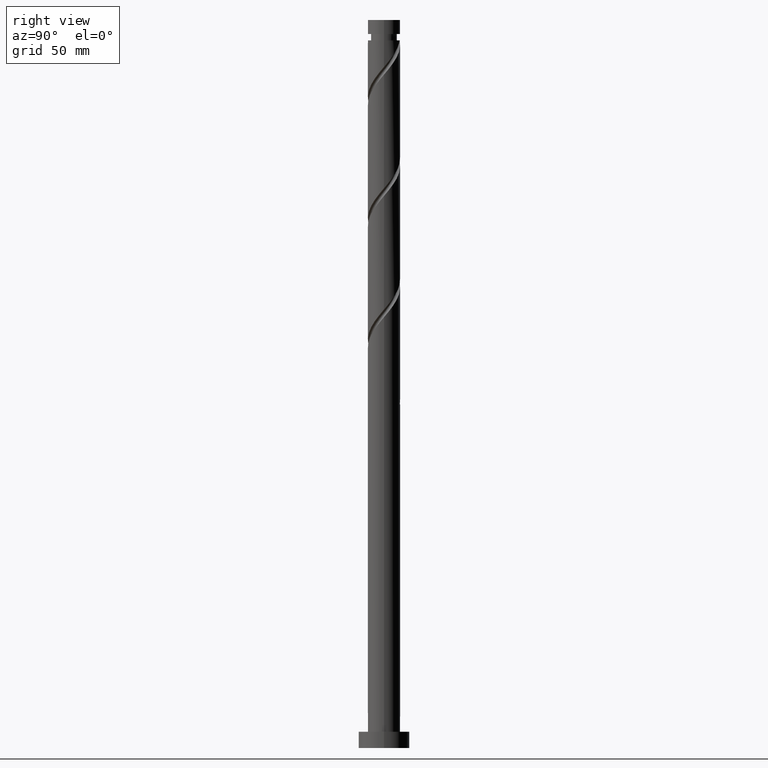
[diagram: clean part render]
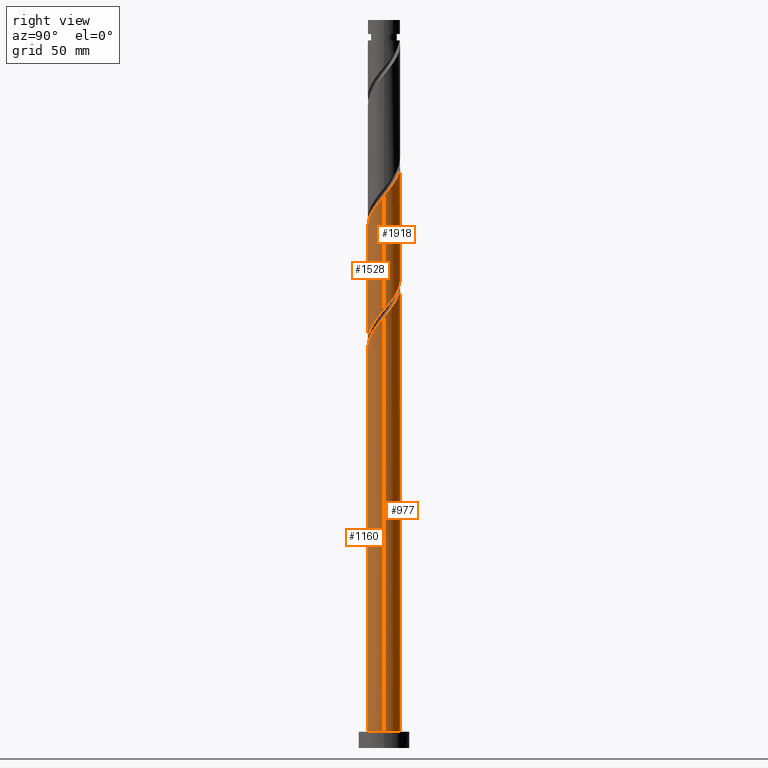
[diagram: same view with one multi-face feature highlighted, each face labeled with its STEP entity id]
A machine part, right view. The highlighted faces form ONE feature: a constant-radius fillet chain: 4 tangent blend faces with common blend radius 7 mm. The faces share edges in the B-rep.
Their STEP definitions:
[1] entity #1160 (Cylinder):
#20 = CARTESIAN_POINT ( 'NONE',  ( 0.000000000000000000, 0.000000000000000000, 315.0000000000000000 ) ) ;
#37 = DIRECTION ( 'NONE',  ( -0.000000000000000000, -0.000000000000000000, -1.000000000000000000 ) ) ;
#46 = ORIENTED_EDGE ( 'NONE', *, *, #988, .T. ) ;
#71 = CARTESIAN_POINT ( 'NONE',  ( 4.231476237048371836, -5.576254016389061263, 178.6868950615576352 ) ) ;
#90 = CARTESIAN_POINT ( 'NONE',  ( 2.165918779664035121, -6.703048576416539284, 175.8743950615576068 ) ) ;
#209 = CARTESIAN_POINT ( 'NONE',  ( 7.000000000000011546, -0.08423028016475025970, 186.2870152954265563 ) ) ;
#227 = CARTESIAN_POINT ( 'NONE',  ( 7.000000000000000888, 8.572527594031474176E-16, 7.000000000000000000 ) ) ;
#229 = CARTESIAN_POINT ( 'NONE',  ( 5.872665919169493876, -3.890226134780121914, 181.4993950615576068 ) ) ;
#239 = CARTESIAN_POINT ( 'NONE',  ( -6.053026884134760088, -3.603183303392013315, 164.6243950615576352 ) ) ;
#246 = CARTESIAN_POINT ( 'NONE',  ( 6.231874297749647518, -3.188062536564728600, 182.4368950615576921 ) ) ;
#351 = VECTOR ( 'NONE', #1786, 1000.000000000000000 ) ;
#359 = EDGE_LOOP ( 'NONE', ( #1624, #1249, #46, #1153 ) ) ;
#363 = CARTESIAN_POINT ( 'NONE',  ( -6.860000000000010978, -1.392982411949271970, 161.8118950615576352 ) ) ;
#384 = CIRCLE ( 'NONE', #437, 7.000000000000000888 ) ;
#437 = AXIS2_PLACEMENT_3D ( 'NONE', #1165, #1627, #561 ) ;
#511 = CARTESIAN_POINT ( 'NONE',  ( 6.997973224858992758, -0.1684361723526152932, 186.1868950615576637 ) ) ;
#518 = CARTESIAN_POINT ( 'NONE',  ( 5.366217544937109452, -4.494853641711742398, 180.5618950615576352 ) ) ;
#561 = DIRECTION ( 'NONE',  ( 1.000000000000000000, 0.000000000000000000, 0.000000000000000000 ) ) ;
#603 = VECTOR ( 'NONE', #1805, 1000.000000000000000 ) ;
#634 = EDGE_CURVE ( 'NONE', #889, #1002, #694, .T. ) ;
#646 = CARTESIAN_POINT ( 'NONE',  ( -7.000000000000011546, -1.044804146506835933E-15, 160.1373779836515325 ) ) ;
#666 = CARTESIAN_POINT ( 'NONE',  ( 1.392982411949271970, -6.860000000000010978, 174.9368950615576068 ) ) ;
#675 = CARTESIAN_POINT ( 'NONE',  ( -0.9569183889397385734, -6.978995026134504620, 172.1243950615575784 ) ) ;
#680 = EDGE_CURVE ( 'NONE', #1404, #1721, #384, .T. ) ;
#683 = CARTESIAN_POINT ( 'NONE',  ( 6.591082676329800272, -2.485898938349336174, 183.3743950615576921 ) ) ;
#694 =( BOUNDED_CURVE ( )  B_SPLINE_CURVE ( 2, ( #646, #1285, #363, #960, #1254, #239, #1877, #1148, #816, #839, #1867, #1726, #1441, #675, #1554, #1110, #666, #90, #1422, #1839, #71, #1859, #518, #229, #246, #683, #848, #1448, #511, #209, #1411 ),
 .UNSPECIFIED., .F., .T. ) 
 B_SPLINE_CURVE_WITH_KNOTS ( ( 3, 2, 2, 2, 2, 2, 2, 2, 2, 2, 2, 2, 2, 2, 2, 3 ),
 ( 0.05453034012992191704, 0.06250000000000000000, 0.07142857142857139685, 0.08035714285714290472, 0.08928571428571430157, 0.09821428571428569843, 0.1071428571428570953, 0.1160714285714286031, 0.1250000000000000000, 0.1339285714285713969, 0.1428571428571429047, 0.1517857142857143016, 0.1607142857142856984, 0.1696428571428570953, 0.1785714285714286031, 0.1795303401299218893 ),
 .UNSPECIFIED. ) 
 CURVE ( )  GEOMETRIC_REPRESENTATION_ITEM ( )  RATIONAL_B_SPLINE_CURVE ( ( 0.9079949616361994158, 0.9039886423360623535, 0.9090909090909291557, 0.9033747362666042502, 0.9090909090909291557, 0.9033747362666042502, 0.9090909090909291557, 0.9033747362666042502, 0.9090909090909291557, 0.9033747362666042502, 0.9090909090909291557, 0.9033747362666042502, 0.9090909090909291557, 0.9033747362666042502, 0.9090909090909291557, 0.9033747362666042502, 0.9090909090909291557, 0.9033747362666042502, 0.9090909090909291557, 0.9033747362666042502, 0.9090909090909291557, 0.9033747362666042502, 0.9090909090909291557, 0.9033747362666042502, 0.9090909090909291557, 0.9033747362666042502, 0.9090909090909291557, 0.9033747362666042502, 0.9090909090909291557, 0.9084770030214710523, 0.9079949616361995268 ) ) 
 REPRESENTATION_ITEM ( '' )  );
#740 = CARTESIAN_POINT ( 'NONE',  ( 7.000000000000011546, 1.940350557798409428E-16, 186.3873779836515894 ) ) ;
#816 = CARTESIAN_POINT ( 'NONE',  ( -4.494853641711742398, -5.366217544937112116, 167.4368950615576352 ) ) ;
#839 = CARTESIAN_POINT ( 'NONE',  ( -3.890226134780120582, -5.872665919169493876, 168.3743950615576068 ) ) ;
#848 = CARTESIAN_POINT ( 'NONE',  ( 6.785038851232150670, -1.721408663644537151, 184.3118950615576352 ) ) ;
#865 = CARTESIAN_POINT ( 'NONE',  ( -7.000000000000011546, -1.044804146506835933E-15, 160.1373779836515325 ) ) ;
#889 = VERTEX_POINT ( 'NONE', #865 ) ;
#923 = FACE_OUTER_BOUND ( 'NONE', #359, .T. ) ;
#960 = CARTESIAN_POINT ( 'NONE',  ( -6.703048576416539284, -2.165918779664035121, 162.7493950615576068 ) ) ;
#988 = EDGE_CURVE ( 'NONE', #889, #1404, #1201, .T. ) ;
#1002 = VERTEX_POINT ( 'NONE', #740 ) ;
#1097 = LINE ( 'NONE', #1684, #603 ) ;
#1110 = CARTESIAN_POINT ( 'NONE',  ( 0.6200460442345087086, -7.016951423583483560, 173.9993950615576637 ) ) ;
#1148 = CARTESIAN_POINT ( 'NONE',  ( -5.099481148643362438, -4.859769170704725916, 166.4993950615577205 ) ) ;
#1153 = ORIENTED_EDGE ( 'NONE', *, *, #680, .T. ) ;
#1160 = ADVANCED_FACE ( 'NONE', ( #923 ), #1368, .T. ) ;
#1165 = CARTESIAN_POINT ( 'NONE',  ( 0.000000000000000000, 0.000000000000000000, 7.000000000000000000 ) ) ;
#1191 = EDGE_CURVE ( 'NONE', #1002, #1721, #1097, .T. ) ;
#1201 = LINE ( 'NONE', #1358, #351 ) ;
#1249 = ORIENTED_EDGE ( 'NONE', *, *, #634, .F. ) ;
#1254 = CARTESIAN_POINT ( 'NONE',  ( -6.378037730275649686, -2.884551041528024218, 163.6868950615575500 ) ) ;
#1285 = CARTESIAN_POINT ( 'NONE',  ( -7.000000000000016875, -0.7035264706814366997, 160.9756490626151901 ) ) ;
#1358 = CARTESIAN_POINT ( 'NONE',  ( -7.000000000000000888, 0.000000000000000000, 315.0000000000000000 ) ) ;
#1368 = CYLINDRICAL_SURFACE ( 'NONE', #1754, 7.000000000000000888 ) ;
#1396 = DIRECTION ( 'NONE',  ( -1.000000000000000000, 0.000000000000000000, 0.000000000000000000 ) ) ;
#1404 = VERTEX_POINT ( 'NONE', #1670 ) ;
#1411 = CARTESIAN_POINT ( 'NONE',  ( 7.000000000000011546, 1.940350557798409428E-16, 186.3873779836515894 ) ) ;
#1422 = CARTESIAN_POINT ( 'NONE',  ( 2.884551041528023774, -6.378037730275649686, 176.8118950615576352 ) ) ;
#1441 = CARTESIAN_POINT ( 'NONE',  ( -1.721408663644536707, -6.785038851232150670, 171.1868950615576352 ) ) ;
#1448 = CARTESIAN_POINT ( 'NONE',  ( 6.978995026134502844, -0.9569183889397390175, 185.2493950615576352 ) ) ;
#1554 = CARTESIAN_POINT ( 'NONE',  ( -0.1684361723526149324, -6.997973224858992758, 173.0618950615576921 ) ) ;
#1624 = ORIENTED_EDGE ( 'NONE', *, *, #1191, .F. ) ;
#1627 = DIRECTION ( 'NONE',  ( 0.000000000000000000, 0.000000000000000000, 1.000000000000000000 ) ) ;
#1670 = CARTESIAN_POINT ( 'NONE',  ( -7.000000000000000888, 0.000000000000000000, 7.000000000000000000 ) ) ;
#1684 = CARTESIAN_POINT ( 'NONE',  ( 7.000000000000000888, 8.572527594031474176E-16, 315.0000000000000000 ) ) ;
#1721 = VERTEX_POINT ( 'NONE', #227 ) ;
#1726 = CARTESIAN_POINT ( 'NONE',  ( -2.485898938349336174, -6.591082676329800272, 170.2493950615576637 ) ) ;
#1754 = AXIS2_PLACEMENT_3D ( 'NONE', #20, #37, #1396 ) ;
#1786 = DIRECTION ( 'NONE',  ( -0.000000000000000000, -0.000000000000000000, -1.000000000000000000 ) ) ;
#1805 = DIRECTION ( 'NONE',  ( -0.000000000000000000, -0.000000000000000000, -1.000000000000000000 ) ) ;
#1839 = CARTESIAN_POINT ( 'NONE',  ( 3.603183303392012871, -6.053026884134760088, 177.7493950615576637 ) ) ;
#1859 = CARTESIAN_POINT ( 'NONE',  ( 4.859769170704725916, -5.099481148643362438, 179.6243950615576637 ) ) ;
#1867 = CARTESIAN_POINT ( 'NONE',  ( -3.188062536564728155, -6.231874297749647518, 169.3118950615576637 ) ) ;
#1877 = CARTESIAN_POINT ( 'NONE',  ( -5.576254016389061263, -4.231476237048371836, 165.5618950615576068 ) ) ;
[2] entity #977 (Cylinder):
#12 = CARTESIAN_POINT ( 'NONE',  ( -7.000000000000002665, 2.895600063176107384E-15, 163.4864121394637095 ) ) ;
#13 = CARTESIAN_POINT ( 'NONE',  ( 6.378037730275649686, 2.884551041528023774, 189.9368950615576637 ) ) ;
#22 = CARTESIAN_POINT ( 'NONE',  ( 1.392982411949273081, 6.860000000000001208, 148.6868950615576068 ) ) ;
#30 = CYLINDRICAL_SURFACE ( 'NONE', #289, 7.000000000000000888 ) ;
#41 = CARTESIAN_POINT ( 'NONE',  ( -6.703048576416528626, 2.165918779664034233, 160.8743950615576352 ) ) ;
#52 = CARTESIAN_POINT ( 'NONE',  ( -7.000000000000002665, 2.895600063176107384E-15, 163.4864121394637095 ) ) ;
#65 = VERTEX_POINT ( 'NONE', #1870 ) ;
#72 = CIRCLE ( 'NONE', #1577, 7.000000000000000888 ) ;
#114 = LINE ( 'NONE', #1794, #1880 ) ;
#142 = DIRECTION ( 'NONE',  ( -1.000000000000000000, 0.000000000000000000, 0.000000000000000000 ) ) ;
#159 = CARTESIAN_POINT ( 'NONE',  ( 5.576254016389061263, 4.231476237048370059, 191.8118950615576352 ) ) ;
#167 = CARTESIAN_POINT ( 'NONE',  ( -5.366217544937112116, 4.494853641711742398, 154.3118950615576352 ) ) ;
#180 = CARTESIAN_POINT ( 'NONE',  ( -0.6200460442345080425, 7.016951423583484448, 200.2493950615576068 ) ) ;
#217 = EDGE_CURVE ( 'NONE', #65, #1033, #72, .T. ) ;
#227 = CARTESIAN_POINT ( 'NONE',  ( 7.000000000000000888, 8.572527594031474176E-16, 7.000000000000000000 ) ) ;
#264 = CARTESIAN_POINT ( 'NONE',  ( 0.000000000000000000, 0.000000000000000000, 7.000000000000000000 ) ) ;
#269 = ORIENTED_EDGE ( 'NONE', *, *, #566, .F. ) ;
#289 = AXIS2_PLACEMENT_3D ( 'NONE', #476, #1349, #1807 ) ;
#298 =( BOUNDED_CURVE ( )  B_SPLINE_CURVE ( 2, ( #12, #1212, #1809, #41, #1677, #926, #1243, #1506, #1788, #306, #1525, #453, #491, #1372, #334, #936, #22 ),
 .UNSPECIFIED., .F., .T. ) 
 B_SPLINE_CURVE_WITH_KNOTS ( ( 3, 2, 2, 2, 2, 2, 2, 2, 3 ),
 ( 0.9295303401299220836, 0.9375000000000000000, 0.9464285714285713969, 0.9553571428571429047, 0.9642857142857143016, 0.9732142857142856984, 0.9821428571428570953, 0.9910714285714286031, 1.000000000000000000 ),
 .UNSPECIFIED. ) 
 CURVE ( )  GEOMETRIC_REPRESENTATION_ITEM ( )  RATIONAL_B_SPLINE_CURVE ( ( 0.9079949616361933096, 0.9039886423360564693, 0.9090909090909231605, 0.9033747362665982550, 0.9090909090909231605, 0.9033747362665982550, 0.9090909090909231605, 0.9033747362665982550, 0.9090909090909231605, 0.9033747362665982550, 0.9090909090909231605, 0.9033747362665982550, 0.9090909090909231605, 0.9033747362665982550, 0.9090909090909231605, 0.9033747362665982550, 0.9090909090909231605 ) ) 
 REPRESENTATION_ITEM ( '' )  );
#304 = CARTESIAN_POINT ( 'NONE',  ( -2.884551041528024218, 6.378037730275649686, 150.5618950615576352 ) ) ;
#306 = CARTESIAN_POINT ( 'NONE',  ( -3.890226134780114808, 5.872665919169487658, 155.2493950615576637 ) ) ;
#307 = CARTESIAN_POINT ( 'NONE',  ( 6.860000000000010978, 1.392982411949271304, 188.0618950615576352 ) ) ;
#327 = CARTESIAN_POINT ( 'NONE',  ( -6.785038851232150670, 1.721408663644536485, 158.0618950615575784 ) ) ;
#334 = CARTESIAN_POINT ( 'NONE',  ( -0.1684361723526128229, 6.997973224858983876, 150.5618950615576637 ) ) ;
#335 = CARTESIAN_POINT ( 'NONE',  ( -6.997973224858992758, 0.1684361723526144605, 159.9368950615576068 ) ) ;
#351 = VECTOR ( 'NONE', #1786, 1000.000000000000000 ) ;
#356 = CARTESIAN_POINT ( 'NONE',  ( -4.231476237048371836, 5.576254016389061263, 204.9368950615576352 ) ) ;
#375 = CARTESIAN_POINT ( 'NONE',  ( -3.603183303392013759, 6.053026884134760088, 203.9993950615576068 ) ) ;
#412 = VERTEX_POINT ( 'NONE', #1517 ) ;
#453 = CARTESIAN_POINT ( 'NONE',  ( -2.485898938349330844, 6.591082676329789614, 153.3743950615576352 ) ) ;
#465 = CARTESIAN_POINT ( 'NONE',  ( -7.000000000000012434, 0.08423028016474699842, 160.0370152954264711 ) ) ;
#470 = VERTEX_POINT ( 'NONE', #52 ) ;
#476 = CARTESIAN_POINT ( 'NONE',  ( 0.000000000000000000, 0.000000000000000000, 315.0000000000000000 ) ) ;
#491 = CARTESIAN_POINT ( 'NONE',  ( -1.721408663644533377, 6.785038851232141788, 152.4368950615576068 ) ) ;
#528 = CARTESIAN_POINT ( 'NONE',  ( -7.000000000000012434, 0.08423028016474699842, 212.5370152954264427 ) ) ;
#540 = CARTESIAN_POINT ( 'NONE',  ( -6.785038851232150670, 1.721408663644536485, 210.5618950615576068 ) ) ;
#566 = EDGE_CURVE ( 'NONE', #1002, #412, #917, .T. ) ;
#585 = CARTESIAN_POINT ( 'NONE',  ( 0.000000000000000000, 0.000000000000000000, 148.6868950615576068 ) ) ;
#603 = VECTOR ( 'NONE', #1805, 1000.000000000000000 ) ;
#606 = CARTESIAN_POINT ( 'NONE',  ( -3.603183303392013759, 6.053026884134760088, 151.4993950615576352 ) ) ;
#619 = CARTESIAN_POINT ( 'NONE',  ( 6.053026884134760088, 3.603183303392011982, 190.8743950615576637 ) ) ;
#641 = ORIENTED_EDGE ( 'NONE', *, *, #988, .F. ) ;
#740 = CARTESIAN_POINT ( 'NONE',  ( 7.000000000000011546, 1.940350557798409428E-16, 186.3873779836515894 ) ) ;
#760 = CARTESIAN_POINT ( 'NONE',  ( -5.872665919169493876, 3.890226134780120582, 155.2493950615576068 ) ) ;
#779 =( BOUNDED_CURVE ( )  B_SPLINE_CURVE ( 2, ( #1675, #1646, #304, #606, #1210, #1657, #167, #760, #1370, #905, #327, #915, #335, #465, #927 ),
 .UNSPECIFIED., .F., .T. ) 
 B_SPLINE_CURVE_WITH_KNOTS ( ( 3, 2, 2, 2, 2, 2, 2, 3 ),
 ( 0.000000000000000000, 0.008928571428571396851, 0.01785714285714290472, 0.02678571428571430157, 0.03571428571428569843, 0.04464285714285708834, 0.05357142857142860315, 0.05453034012992191704 ),
 .UNSPECIFIED. ) 
 CURVE ( )  GEOMETRIC_REPRESENTATION_ITEM ( )  RATIONAL_B_SPLINE_CURVE ( ( 0.9090909090909291557, 0.9033747362666042502, 0.9090909090909291557, 0.9033747362666042502, 0.9090909090909291557, 0.9033747362666042502, 0.9090909090909291557, 0.9033747362666042502, 0.9090909090909291557, 0.9033747362666042502, 0.9090909090909291557, 0.9033747362666042502, 0.9090909090909291557, 0.9084770030214710523, 0.9079949616361994158 ) ) 
 REPRESENTATION_ITEM ( '' )  );
#790 = AXIS2_PLACEMENT_3D ( 'NONE', #264, #1156, #1757 ) ;
#829 = CARTESIAN_POINT ( 'NONE',  ( -4.859769170704726804, 5.099481148643362438, 205.8743950615576637 ) ) ;
#863 = EDGE_CURVE ( 'NONE', #1721, #1404, #1297, .T. ) ;
#865 = CARTESIAN_POINT ( 'NONE',  ( -7.000000000000011546, -1.044804146506835933E-15, 160.1373779836515325 ) ) ;
#889 = VERTEX_POINT ( 'NONE', #865 ) ;
#905 = CARTESIAN_POINT ( 'NONE',  ( -6.591082676329800272, 2.485898938349335285, 157.1243950615576637 ) ) ;
#915 = CARTESIAN_POINT ( 'NONE',  ( -6.978995026134504620, 0.9569183889397380183, 158.9993950615576352 ) ) ;
#917 =( BOUNDED_CURVE ( )  B_SPLINE_CURVE ( 2, ( #1649, #1660, #307, #1508, #13, #619, #159, #1362, #1213, #1221, #1800, #1070, #1810, #1079, #1527, #180, #1697, #1275, #1716, #375, #356, #829, #1849, #1431, #1734, #987, #540, #1140, #1585, #528, #996 ),
 .UNSPECIFIED., .F., .T. ) 
 B_SPLINE_CURVE_WITH_KNOTS ( ( 3, 2, 2, 2, 2, 2, 2, 2, 2, 2, 2, 2, 2, 2, 2, 3 ),
 ( 0.1795303401299218893, 0.1875000000000000000, 0.1964285714285713969, 0.2053571428571429047, 0.2142857142857143016, 0.2232142857142856984, 0.2321428571428570953, 0.2410714285714286031, 0.2500000000000000000, 0.2589285714285713969, 0.2678571428571429047, 0.2767857142857143016, 0.2857142857142856984, 0.2946428571428570953, 0.3035714285714286031, 0.3045303401299219170 ),
 .UNSPECIFIED. ) 
 CURVE ( )  GEOMETRIC_REPRESENTATION_ITEM ( )  RATIONAL_B_SPLINE_CURVE ( ( 0.9079949616361995268, 0.9039886423360623535, 0.9090909090909291557, 0.9033747362666042502, 0.9090909090909291557, 0.9033747362666042502, 0.9090909090909291557, 0.9033747362666042502, 0.9090909090909291557, 0.9033747362666042502, 0.9090909090909291557, 0.9033747362666042502, 0.9090909090909291557, 0.9033747362666042502, 0.9090909090909291557, 0.9033747362666042502, 0.9090909090909291557, 0.9033747362666042502, 0.9090909090909291557, 0.9033747362666042502, 0.9090909090909291557, 0.9033747362666042502, 0.9090909090909291557, 0.9033747362666042502, 0.9090909090909291557, 0.9033747362666042502, 0.9090909090909291557, 0.9033747362666042502, 0.9090909090909291557, 0.9084770030214710523, 0.9079949616361994158 ) ) 
 REPRESENTATION_ITEM ( '' )  );
#926 = CARTESIAN_POINT ( 'NONE',  ( -6.053026884134752095, 3.603183303392009762, 158.9993950615576352 ) ) ;
#927 = CARTESIAN_POINT ( 'NONE',  ( -7.000000000000011546, -1.044804146506835933E-15, 160.1373779836515325 ) ) ;
#936 = CARTESIAN_POINT ( 'NONE',  ( 0.6200460442345097078, 7.016951423583473790, 149.6243950615576068 ) ) ;
#963 = ORIENTED_EDGE ( 'NONE', *, *, #863, .T. ) ;
#975 = ORIENTED_EDGE ( 'NONE', *, *, #1001, .F. ) ;
#977 = ADVANCED_FACE ( 'NONE', ( #1523 ), #30, .T. ) ;
#987 = CARTESIAN_POINT ( 'NONE',  ( -6.591082676329800272, 2.485898938349335285, 209.6243950615575784 ) ) ;
#988 = EDGE_CURVE ( 'NONE', #889, #1404, #1201, .T. ) ;
#996 = CARTESIAN_POINT ( 'NONE',  ( -7.000000000000011546, -1.044804146506835933E-15, 212.6373779836515325 ) ) ;
#999 = ORIENTED_EDGE ( 'NONE', *, *, #1102, .F. ) ;
#1001 = EDGE_CURVE ( 'NONE', #65, #889, #779, .T. ) ;
#1002 = VERTEX_POINT ( 'NONE', #740 ) ;
#1033 = VERTEX_POINT ( 'NONE', #1244 ) ;
#1070 = CARTESIAN_POINT ( 'NONE',  ( 2.485898938349337062, 6.591082676329799384, 196.4993950615576637 ) ) ;
#1079 = CARTESIAN_POINT ( 'NONE',  ( 0.9569183889397394616, 6.978995026134502844, 198.3743950615577205 ) ) ;
#1097 = LINE ( 'NONE', #1684, #603 ) ;
#1102 = EDGE_CURVE ( 'NONE', #412, #470, #114, .T. ) ;
#1140 = CARTESIAN_POINT ( 'NONE',  ( -6.978995026134504620, 0.9569183889397380183, 211.4993950615576637 ) ) ;
#1156 = DIRECTION ( 'NONE',  ( 0.000000000000000000, 0.000000000000000000, 1.000000000000000000 ) ) ;
#1191 = EDGE_CURVE ( 'NONE', #1002, #1721, #1097, .T. ) ;
#1201 = LINE ( 'NONE', #1358, #351 ) ;
#1210 = CARTESIAN_POINT ( 'NONE',  ( -4.231476237048371836, 5.576254016389061263, 152.4368950615576352 ) ) ;
#1212 = CARTESIAN_POINT ( 'NONE',  ( -7.000000000000000888, 0.7035264706814520208, 162.6481410605000804 ) ) ;
#1213 = CARTESIAN_POINT ( 'NONE',  ( 4.494853641711742398, 5.366217544937109452, 193.6868950615576352 ) ) ;
#1221 = CARTESIAN_POINT ( 'NONE',  ( 3.890226134780122802, 5.872665919169492987, 194.6243950615576068 ) ) ;
#1228 = DIRECTION ( 'NONE',  ( -0.000000000000000000, -0.000000000000000000, -1.000000000000000000 ) ) ;
#1243 = CARTESIAN_POINT ( 'NONE',  ( -5.576254016389052381, 4.231476237048364730, 158.0618950615576637 ) ) ;
#1244 = CARTESIAN_POINT ( 'NONE',  ( 1.392982411949273081, 6.860000000000001208, 148.6868950615576068 ) ) ;
#1275 = CARTESIAN_POINT ( 'NONE',  ( -2.165918779664035565, 6.703048576416539284, 202.1243950615576637 ) ) ;
#1278 = ORIENTED_EDGE ( 'NONE', *, *, #1191, .T. ) ;
#1297 = CIRCLE ( 'NONE', #790, 7.000000000000000888 ) ;
#1349 = DIRECTION ( 'NONE',  ( -0.000000000000000000, -0.000000000000000000, -1.000000000000000000 ) ) ;
#1358 = CARTESIAN_POINT ( 'NONE',  ( -7.000000000000000888, 0.000000000000000000, 315.0000000000000000 ) ) ;
#1362 = CARTESIAN_POINT ( 'NONE',  ( 5.099481148643362438, 4.859769170704725916, 192.7493950615576637 ) ) ;
#1370 = CARTESIAN_POINT ( 'NONE',  ( -6.231874297749647518, 3.188062536564727711, 156.1868950615576352 ) ) ;
#1372 = CARTESIAN_POINT ( 'NONE',  ( -0.9569183889397352427, 6.978995026134492186, 151.4993950615576637 ) ) ;
#1404 = VERTEX_POINT ( 'NONE', #1670 ) ;
#1431 = CARTESIAN_POINT ( 'NONE',  ( -5.872665919169493876, 3.890226134780120582, 207.7493950615576921 ) ) ;
#1488 = DIRECTION ( 'NONE',  ( 0.000000000000000000, -0.000000000000000000, -1.000000000000000000 ) ) ;
#1506 = CARTESIAN_POINT ( 'NONE',  ( -5.099481148643351780, 4.859769170704723251, 157.1243950615576068 ) ) ;
#1508 = CARTESIAN_POINT ( 'NONE',  ( 6.703048576416539284, 2.165918779664035121, 188.9993950615576352 ) ) ;
#1517 = CARTESIAN_POINT ( 'NONE',  ( -7.000000000000011546, -1.044804146506835933E-15, 212.6373779836515325 ) ) ;
#1523 = FACE_OUTER_BOUND ( 'NONE', #1719, .T. ) ;
#1525 = CARTESIAN_POINT ( 'NONE',  ( -3.188062536564721494, 6.231874297749637748, 154.3118950615576637 ) ) ;
#1527 = CARTESIAN_POINT ( 'NONE',  ( 0.1684361723526159593, 6.997973224858991870, 199.3118950615576352 ) ) ;
#1537 = ORIENTED_EDGE ( 'NONE', *, *, #1643, .F. ) ;
#1577 = AXIS2_PLACEMENT_3D ( 'NONE', #585, #1488, #142 ) ;
#1585 = CARTESIAN_POINT ( 'NONE',  ( -6.997973224858992758, 0.1684361723526144605, 212.4368950615576068 ) ) ;
#1643 = EDGE_CURVE ( 'NONE', #470, #1033, #298, .T. ) ;
#1646 = CARTESIAN_POINT ( 'NONE',  ( -2.165918779664035565, 6.703048576416539284, 149.6243950615576352 ) ) ;
#1649 = CARTESIAN_POINT ( 'NONE',  ( 7.000000000000011546, 1.940350557798409428E-16, 186.3873779836515894 ) ) ;
#1657 = CARTESIAN_POINT ( 'NONE',  ( -4.859769170704726804, 5.099481148643362438, 153.3743950615576352 ) ) ;
#1660 = CARTESIAN_POINT ( 'NONE',  ( 7.000000000000016875, 0.7035264706814335911, 187.2256490626151617 ) ) ;
#1670 = CARTESIAN_POINT ( 'NONE',  ( -7.000000000000000888, 0.000000000000000000, 7.000000000000000000 ) ) ;
#1675 = CARTESIAN_POINT ( 'NONE',  ( -1.392982411949271082, 6.860000000000011866, 148.6868950615576068 ) ) ;
#1677 = CARTESIAN_POINT ( 'NONE',  ( -6.378037730275639916, 2.884551041528022441, 159.9368950615576352 ) ) ;
#1684 = CARTESIAN_POINT ( 'NONE',  ( 7.000000000000000888, 8.572527594031474176E-16, 315.0000000000000000 ) ) ;
#1697 = CARTESIAN_POINT ( 'NONE',  ( -1.392982411949270860, 6.860000000000010978, 201.1868950615576637 ) ) ;
#1716 = CARTESIAN_POINT ( 'NONE',  ( -2.884551041528024218, 6.378037730275649686, 203.0618950615576921 ) ) ;
#1719 = EDGE_LOOP ( 'NONE', ( #269, #1278, #963, #641, #975, #1916, #1537, #999 ) ) ;
#1721 = VERTEX_POINT ( 'NONE', #227 ) ;
#1734 = CARTESIAN_POINT ( 'NONE',  ( -6.231874297749647518, 3.188062536564727711, 208.6868950615576352 ) ) ;
#1757 = DIRECTION ( 'NONE',  ( 1.000000000000000000, 0.000000000000000000, 0.000000000000000000 ) ) ;
#1786 = DIRECTION ( 'NONE',  ( -0.000000000000000000, -0.000000000000000000, -1.000000000000000000 ) ) ;
#1788 = CARTESIAN_POINT ( 'NONE',  ( -4.494853641711733516, 5.366217544937103234, 156.1868950615575784 ) ) ;
#1794 = CARTESIAN_POINT ( 'NONE',  ( -7.000000000000000888, 0.000000000000000000, 315.0000000000000000 ) ) ;
#1800 = CARTESIAN_POINT ( 'NONE',  ( 3.188062536564728600, 6.231874297749647518, 195.5618950615576352 ) ) ;
#1805 = DIRECTION ( 'NONE',  ( -0.000000000000000000, -0.000000000000000000, -1.000000000000000000 ) ) ;
#1807 = DIRECTION ( 'NONE',  ( -1.000000000000000000, 0.000000000000000000, 0.000000000000000000 ) ) ;
#1809 = CARTESIAN_POINT ( 'NONE',  ( -6.860000000000001208, 1.392982411949271748, 161.8118950615576352 ) ) ;
#1810 = CARTESIAN_POINT ( 'NONE',  ( 1.721408663644537596, 6.785038851232150670, 197.4368950615575784 ) ) ;
#1849 = CARTESIAN_POINT ( 'NONE',  ( -5.366217544937112116, 4.494853641711742398, 206.8118950615576637 ) ) ;
#1870 = CARTESIAN_POINT ( 'NONE',  ( -1.392982411949271082, 6.860000000000011866, 148.6868950615576068 ) ) ;
#1880 = VECTOR ( 'NONE', #1228, 1000.000000000000000 ) ;
#1916 = ORIENTED_EDGE ( 'NONE', *, *, #217, .T. ) ;
[3] entity #1528 (Cylinder):
#52 = CARTESIAN_POINT ( 'NONE',  ( -7.000000000000002665, 2.895600063176107384E-15, 163.4864121394637095 ) ) ;
#55 = ORIENTED_EDGE ( 'NONE', *, *, #193, .F. ) ;
#86 = CARTESIAN_POINT ( 'NONE',  ( 6.378037730275639916, -2.884551041528023330, 186.1868950615576352 ) ) ;
#99 = FACE_OUTER_BOUND ( 'NONE', #713, .T. ) ;
#103 = CARTESIAN_POINT ( 'NONE',  ( -7.000000000000002665, -0.08423028016473038670, 163.5867748276887994 ) ) ;
#108 = CARTESIAN_POINT ( 'NONE',  ( -6.703048576416539284, -2.165918779664035121, 215.2493950615576637 ) ) ;
#114 = LINE ( 'NONE', #1794, #1880 ) ;
#118 = CARTESIAN_POINT ( 'NONE',  ( 6.785038851232150670, -1.721408663644537151, 236.8118950615576068 ) ) ;
#127 = CYLINDRICAL_SURFACE ( 'NONE', #166, 7.000000000000000888 ) ;
#128 = CARTESIAN_POINT ( 'NONE',  ( -7.000000000000011546, -1.044804146506835933E-15, 212.6373779836515325 ) ) ;
#166 = AXIS2_PLACEMENT_3D ( 'NONE', #273, #867, #1317 ) ;
#193 = EDGE_CURVE ( 'NONE', #412, #1198, #1379, .T. ) ;
#215 = CARTESIAN_POINT ( 'NONE',  ( 6.703048576416528626, -2.165918779664034677, 187.1243950615575500 ) ) ;
#236 = CARTESIAN_POINT ( 'NONE',  ( 5.099481148643351780, -4.859769170704723251, 183.3743950615576637 ) ) ;
#255 = CARTESIAN_POINT ( 'NONE',  ( -6.231874297749640412, -3.188062536564721494, 167.4368950615576352 ) ) ;
#267 = CARTESIAN_POINT ( 'NONE',  ( -2.485898938349336174, -6.591082676329800272, 222.7493950615576352 ) ) ;
#273 = CARTESIAN_POINT ( 'NONE',  ( 0.000000000000000000, 0.000000000000000000, 315.0000000000000000 ) ) ;
#287 = CARTESIAN_POINT ( 'NONE',  ( 6.231874297749647518, -3.188062536564728600, 234.9368950615576921 ) ) ;
#296 = CARTESIAN_POINT ( 'NONE',  ( -5.099481148643362438, -4.859769170704725916, 218.9993950615576352 ) ) ;
#371 = CARTESIAN_POINT ( 'NONE',  ( -5.872665919169487658, -3.890226134780113476, 168.3743950615576637 ) ) ;
#393 =( BOUNDED_CURVE ( )  B_SPLINE_CURVE ( 2, ( #1665, #1520, #1447, #215, #86, #824, #994, #236, #845, #549, #1873, #966, #1154, #1560, #1137, #1004, #672, #854, #1272, #1281, #1739, #1592, #1600, #371, #255, #1864, #1890, #558, #525, #103, #1722 ),
 .UNSPECIFIED., .F., .T. ) 
 B_SPLINE_CURVE_WITH_KNOTS ( ( 3, 2, 2, 2, 2, 2, 2, 2, 2, 2, 2, 2, 2, 2, 2, 3 ),
 ( 0.8045303401299220836, 0.8125000000000000000, 0.8214285714285713969, 0.8303571428571429047, 0.8392857142857143016, 0.8482142857142856984, 0.8571428571428570953, 0.8660714285714286031, 0.8750000000000000000, 0.8839285714285713969, 0.8928571428571429047, 0.9017857142857143016, 0.9107142857142856984, 0.9196428571428570953, 0.9285714285714286031, 0.9295303401299220836 ),
 .UNSPECIFIED. ) 
 CURVE ( )  GEOMETRIC_REPRESENTATION_ITEM ( )  RATIONAL_B_SPLINE_CURVE ( ( 0.9079949616361933096, 0.9039886423360564693, 0.9090909090909231605, 0.9033747362665982550, 0.9090909090909231605, 0.9033747362665982550, 0.9090909090909231605, 0.9033747362665982550, 0.9090909090909231605, 0.9033747362665982550, 0.9090909090909231605, 0.9033747362665982550, 0.9090909090909231605, 0.9033747362665982550, 0.9090909090909231605, 0.9033747362665982550, 0.9090909090909231605, 0.9033747362665982550, 0.9090909090909231605, 0.9033747362665982550, 0.9090909090909231605, 0.9033747362665982550, 0.9090909090909231605, 0.9033747362665982550, 0.9090909090909231605, 0.9033747362665982550, 0.9090909090909231605, 0.9033747362665982550, 0.9090909090909231605, 0.9084770030214649461, 0.9079949616361933096 ) ) 
 REPRESENTATION_ITEM ( '' )  );
#410 = CARTESIAN_POINT ( 'NONE',  ( -5.576254016389061263, -4.231476237048371836, 218.0618950615576068 ) ) ;
#412 = VERTEX_POINT ( 'NONE', #1517 ) ;
#461 = CARTESIAN_POINT ( 'NONE',  ( 7.000000000000011546, 1.940350557798409428E-16, 238.8873779836515610 ) ) ;
#470 = VERTEX_POINT ( 'NONE', #52 ) ;
#525 = CARTESIAN_POINT ( 'NONE',  ( -6.997973224858983876, -0.1684361723526123789, 163.6868950615576352 ) ) ;
#549 = CARTESIAN_POINT ( 'NONE',  ( 3.890226134780113476, -5.872665919169487658, 181.4993950615575784 ) ) ;
#558 = CARTESIAN_POINT ( 'NONE',  ( -6.978995026134492186, -0.9569183889397347986, 164.6243950615576352 ) ) ;
#564 = CARTESIAN_POINT ( 'NONE',  ( 0.6200460442345087086, -7.016951423583483560, 226.4993950615576921 ) ) ;
#572 = CARTESIAN_POINT ( 'NONE',  ( -6.378037730275649686, -2.884551041528024218, 216.1868950615576352 ) ) ;
#672 = CARTESIAN_POINT ( 'NONE',  ( -1.392982411949272192, -6.860000000000001208, 174.9368950615576352 ) ) ;
#703 = CARTESIAN_POINT ( 'NONE',  ( -4.494853641711742398, -5.366217544937112116, 219.9368950615576637 ) ) ;
#710 = CARTESIAN_POINT ( 'NONE',  ( 6.978995026134502844, -0.9569183889397390175, 237.7493950615576068 ) ) ;
#713 = EDGE_LOOP ( 'NONE', ( #1596, #55, #1084, #1557 ) ) ;
#739 = LINE ( 'NONE', #1516, #1204 ) ;
#824 = CARTESIAN_POINT ( 'NONE',  ( 6.053026884134751207, -3.603183303392010206, 185.2493950615576637 ) ) ;
#845 = CARTESIAN_POINT ( 'NONE',  ( 4.494853641711733516, -5.366217544937103234, 182.4368950615576068 ) ) ;
#854 = CARTESIAN_POINT ( 'NONE',  ( -2.165918779664034677, -6.703048576416528626, 173.9993950615576352 ) ) ;
#867 = DIRECTION ( 'NONE',  ( -0.000000000000000000, -0.000000000000000000, -1.000000000000000000 ) ) ;
#868 = CARTESIAN_POINT ( 'NONE',  ( -3.890226134780120582, -5.872665919169493876, 220.8743950615576637 ) ) ;
#895 = CARTESIAN_POINT ( 'NONE',  ( 3.603183303392012871, -6.053026884134760088, 230.2493950615576637 ) ) ;
#966 = CARTESIAN_POINT ( 'NONE',  ( 2.485898938349330400, -6.591082676329788725, 179.6243950615576352 ) ) ;
#994 = CARTESIAN_POINT ( 'NONE',  ( 5.576254016389050605, -4.231476237048367395, 184.3118950615576352 ) ) ;
#1004 = CARTESIAN_POINT ( 'NONE',  ( -0.6200460442345108181, -7.016951423583473790, 175.8743950615576068 ) ) ;
#1019 = CARTESIAN_POINT ( 'NONE',  ( 4.859769170704725916, -5.099481148643362438, 232.1243950615576352 ) ) ;
#1029 = CARTESIAN_POINT ( 'NONE',  ( 4.231476237048371836, -5.576254016389061263, 231.1868950615576352 ) ) ;
#1040 = CARTESIAN_POINT ( 'NONE',  ( 2.884551041528023774, -6.378037730275649686, 229.3118950615576637 ) ) ;
#1051 = CARTESIAN_POINT ( 'NONE',  ( -6.053026884134760088, -3.603183303392013315, 217.1243950615576921 ) ) ;
#1084 = ORIENTED_EDGE ( 'NONE', *, *, #1102, .T. ) ;
#1102 = EDGE_CURVE ( 'NONE', #412, #470, #114, .T. ) ;
#1137 = CARTESIAN_POINT ( 'NONE',  ( 0.1684361723526119348, -6.997973224858983876, 176.8118950615576352 ) ) ;
#1154 = CARTESIAN_POINT ( 'NONE',  ( 1.721408663644532266, -6.785038851232141788, 178.6868950615576352 ) ) ;
#1168 = CARTESIAN_POINT ( 'NONE',  ( 1.392982411949271970, -6.860000000000010978, 227.4368950615576921 ) ) ;
#1177 = CARTESIAN_POINT ( 'NONE',  ( 7.000000000000012434, -0.08423028016474783108, 238.7870152954264995 ) ) ;
#1198 = VERTEX_POINT ( 'NONE', #461 ) ;
#1204 = VECTOR ( 'NONE', #1351, 1000.000000000000000 ) ;
#1215 = EDGE_CURVE ( 'NONE', #1824, #470, #393, .T. ) ;
#1228 = DIRECTION ( 'NONE',  ( -0.000000000000000000, -0.000000000000000000, -1.000000000000000000 ) ) ;
#1272 = CARTESIAN_POINT ( 'NONE',  ( -2.884551041528022886, -6.378037730275639916, 173.0618950615576068 ) ) ;
#1281 = CARTESIAN_POINT ( 'NONE',  ( -3.603183303392009762, -6.053026884134752095, 172.1243950615576068 ) ) ;
#1317 = DIRECTION ( 'NONE',  ( -1.000000000000000000, 0.000000000000000000, 0.000000000000000000 ) ) ;
#1333 = CARTESIAN_POINT ( 'NONE',  ( -0.1684361723526149324, -6.997973224858992758, 225.5618950615576352 ) ) ;
#1342 = CARTESIAN_POINT ( 'NONE',  ( -3.188062536564728155, -6.231874297749647518, 221.8118950615576921 ) ) ;
#1351 = DIRECTION ( 'NONE',  ( -0.000000000000000000, -0.000000000000000000, -1.000000000000000000 ) ) ;
#1379 =( BOUNDED_CURVE ( )  B_SPLINE_CURVE ( 2, ( #128, #1460, #1630, #108, #572, #1051, #410, #296, #703, #868, #1342, #267, #1896, #1470, #1333, #564, #1168, #1914, #1040, #895, #1029, #1019, #1612, #1641, #287, #1479, #118, #710, #1903, #1177, #1761 ),
 .UNSPECIFIED., .F., .T. ) 
 B_SPLINE_CURVE_WITH_KNOTS ( ( 3, 2, 2, 2, 2, 2, 2, 2, 2, 2, 2, 2, 2, 2, 2, 3 ),
 ( 0.3045303401299219170, 0.3125000000000000000, 0.3214285714285713969, 0.3303571428571429047, 0.3392857142857143016, 0.3482142857142856984, 0.3571428571428570953, 0.3660714285714286031, 0.3750000000000000000, 0.3839285714285713969, 0.3928571428571429047, 0.4017857142857143016, 0.4107142857142856984, 0.4196428571428570953, 0.4285714285714286031, 0.4295303401299219170 ),
 .UNSPECIFIED. ) 
 CURVE ( )  GEOMETRIC_REPRESENTATION_ITEM ( )  RATIONAL_B_SPLINE_CURVE ( ( 0.9079949616361994158, 0.9039886423360623535, 0.9090909090909291557, 0.9033747362666042502, 0.9090909090909291557, 0.9033747362666042502, 0.9090909090909291557, 0.9033747362666042502, 0.9090909090909291557, 0.9033747362666042502, 0.9090909090909291557, 0.9033747362666042502, 0.9090909090909291557, 0.9033747362666042502, 0.9090909090909291557, 0.9033747362666042502, 0.9090909090909291557, 0.9033747362666042502, 0.9090909090909291557, 0.9033747362666042502, 0.9090909090909291557, 0.9033747362666042502, 0.9090909090909291557, 0.9033747362666042502, 0.9090909090909291557, 0.9033747362666042502, 0.9090909090909291557, 0.9033747362666042502, 0.9090909090909291557, 0.9084770030214710523, 0.9079949616361994158 ) ) 
 REPRESENTATION_ITEM ( '' )  );
#1410 = CARTESIAN_POINT ( 'NONE',  ( 7.000000000000002665, -3.552334098123265129E-15, 189.7364121394637095 ) ) ;
#1447 = CARTESIAN_POINT ( 'NONE',  ( 6.860000000000001208, -1.392982411949272636, 188.0618950615576352 ) ) ;
#1460 = CARTESIAN_POINT ( 'NONE',  ( -7.000000000000016875, -0.7035264706814366997, 213.4756490626151901 ) ) ;
#1470 = CARTESIAN_POINT ( 'NONE',  ( -0.9569183889397385734, -6.978995026134504620, 224.6243950615576352 ) ) ;
#1479 = CARTESIAN_POINT ( 'NONE',  ( 6.591082676329800272, -2.485898938349336174, 235.8743950615576352 ) ) ;
#1516 = CARTESIAN_POINT ( 'NONE',  ( 7.000000000000000888, 8.572527594031474176E-16, 315.0000000000000000 ) ) ;
#1517 = CARTESIAN_POINT ( 'NONE',  ( -7.000000000000011546, -1.044804146506835933E-15, 212.6373779836515325 ) ) ;
#1520 = CARTESIAN_POINT ( 'NONE',  ( 7.000000000000000888, -0.7035264706814527980, 188.8981410605000519 ) ) ;
#1528 = ADVANCED_FACE ( 'NONE', ( #99 ), #127, .T. ) ;
#1557 = ORIENTED_EDGE ( 'NONE', *, *, #1215, .F. ) ;
#1560 = CARTESIAN_POINT ( 'NONE',  ( 0.9569183889397343545, -6.978995026134492186, 177.7493950615576352 ) ) ;
#1588 = EDGE_CURVE ( 'NONE', #1198, #1824, #739, .T. ) ;
#1592 = CARTESIAN_POINT ( 'NONE',  ( -4.859769170704723251, -5.099481148643351780, 170.2493950615575784 ) ) ;
#1596 = ORIENTED_EDGE ( 'NONE', *, *, #1588, .F. ) ;
#1600 = CARTESIAN_POINT ( 'NONE',  ( -5.366217544937103234, -4.494853641711733516, 169.3118950615576352 ) ) ;
#1612 = CARTESIAN_POINT ( 'NONE',  ( 5.366217544937109452, -4.494853641711742398, 233.0618950615576637 ) ) ;
#1630 = CARTESIAN_POINT ( 'NONE',  ( -6.860000000000010978, -1.392982411949271970, 214.3118950615576352 ) ) ;
#1641 = CARTESIAN_POINT ( 'NONE',  ( 5.872665919169493876, -3.890226134780121914, 233.9993950615576352 ) ) ;
#1665 = CARTESIAN_POINT ( 'NONE',  ( 7.000000000000002665, -3.552334098123264735E-15, 189.7364121394637095 ) ) ;
#1722 = CARTESIAN_POINT ( 'NONE',  ( -7.000000000000002665, 2.895600063176107384E-15, 163.4864121394637095 ) ) ;
#1739 = CARTESIAN_POINT ( 'NONE',  ( -4.231476237048366507, -5.576254016389052381, 171.1868950615575784 ) ) ;
#1761 = CARTESIAN_POINT ( 'NONE',  ( 7.000000000000011546, 1.940350557798409182E-16, 238.8873779836515894 ) ) ;
#1794 = CARTESIAN_POINT ( 'NONE',  ( -7.000000000000000888, 0.000000000000000000, 315.0000000000000000 ) ) ;
#1824 = VERTEX_POINT ( 'NONE', #1410 ) ;
#1864 = CARTESIAN_POINT ( 'NONE',  ( -6.591082676329788725, -2.485898938349330400, 166.4993950615576352 ) ) ;
#1873 = CARTESIAN_POINT ( 'NONE',  ( 3.188062536564720606, -6.231874297749640412, 180.5618950615576352 ) ) ;
#1880 = VECTOR ( 'NONE', #1228, 1000.000000000000000 ) ;
#1890 = CARTESIAN_POINT ( 'NONE',  ( -6.785038851232141788, -1.721408663644533377, 165.5618950615576068 ) ) ;
#1896 = CARTESIAN_POINT ( 'NONE',  ( -1.721408663644536707, -6.785038851232150670, 223.6868950615576637 ) ) ;
#1903 = CARTESIAN_POINT ( 'NONE',  ( 6.997973224858992758, -0.1684361723526152932, 238.6868950615576352 ) ) ;
#1914 = CARTESIAN_POINT ( 'NONE',  ( 2.165918779664035121, -6.703048576416539284, 228.3743950615576352 ) ) ;
[4] entity #1918 (Cylinder):
#3 = CARTESIAN_POINT ( 'NONE',  ( 4.494853641711742398, 5.366217544937109452, 246.1868950615576637 ) ) ;
#4 = CARTESIAN_POINT ( 'NONE',  ( 4.231476237048367395, 5.576254016389050605, 197.4368950615576352 ) ) ;
#25 = ORIENTED_EDGE ( 'NONE', *, *, #1588, .T. ) ;
#32 = CARTESIAN_POINT ( 'NONE',  ( 2.485898938349337062, 6.591082676329799384, 248.9993950615576352 ) ) ;
#75 = CARTESIAN_POINT ( 'NONE',  ( -1.721408663644533377, 6.785038851232141788, 204.9368950615576068 ) ) ;
#83 = CARTESIAN_POINT ( 'NONE',  ( 1.392982411949273081, 6.860000000000001208, 201.1868950615576921 ) ) ;
#100 = CARTESIAN_POINT ( 'NONE',  ( -7.000000000000002665, 2.895600063176107384E-15, 215.9864121394636811 ) ) ;
#132 = EDGE_CURVE ( 'NONE', #1365, #1824, #441, .T. ) ;
#151 = CARTESIAN_POINT ( 'NONE',  ( 6.703048576416539284, 2.165918779664035121, 241.4993950615576352 ) ) ;
#178 = CARTESIAN_POINT ( 'NONE',  ( 0.1684361723526159593, 6.997973224858991870, 251.8118950615576068 ) ) ;
#223 = CARTESIAN_POINT ( 'NONE',  ( -5.576254016389052381, 4.231476237048364730, 210.5618950615576068 ) ) ;
#234 = CARTESIAN_POINT ( 'NONE',  ( -0.9569183889397352427, 6.978995026134492186, 203.9993950615576068 ) ) ;
#290 = ORIENTED_EDGE ( 'NONE', *, *, #132, .F. ) ;
#295 = CARTESIAN_POINT ( 'NONE',  ( -6.785038851232150670, 1.721408663644536485, 263.0618950615577205 ) ) ;
#315 = CARTESIAN_POINT ( 'NONE',  ( -6.997973224858992758, 0.1684361723526144605, 264.9368950615576068 ) ) ;
#326 = CARTESIAN_POINT ( 'NONE',  ( -2.884551041528024218, 6.378037730275649686, 255.5618950615576921 ) ) ;
#332 = DIRECTION ( 'NONE',  ( -0.000000000000000000, -0.000000000000000000, -1.000000000000000000 ) ) ;
#402 = CARTESIAN_POINT ( 'NONE',  ( 6.978995026134492186, 0.9569183889397340215, 190.8743950615576637 ) ) ;
#434 = CARTESIAN_POINT ( 'NONE',  ( 6.997973224858983876, 0.1684361723526117405, 189.9368950615576352 ) ) ;
#441 =( BOUNDED_CURVE ( )  B_SPLINE_CURVE ( 2, ( #100, #1123, #973, #1567, #1451, #1288, #223, #544, #820, #1578, #1303, #1425, #75, #234, #832, #1151, #83, #531, #1589, #722, #4, #1352, #601, #1318, #1497, #1310, #1744, #402, #434, #1186, #876 ),
 .UNSPECIFIED., .F., .T. ) 
 B_SPLINE_CURVE_WITH_KNOTS ( ( 3, 2, 2, 2, 2, 2, 2, 2, 2, 2, 2, 2, 2, 2, 2, 3 ),
 ( 0.6795303401299220836, 0.6875000000000000000, 0.6964285714285713969, 0.7053571428571429047, 0.7142857142857143016, 0.7232142857142856984, 0.7321428571428570953, 0.7410714285714286031, 0.7500000000000000000, 0.7589285714285713969, 0.7678571428571429047, 0.7767857142857143016, 0.7857142857142856984, 0.7946428571428570953, 0.8035714285714286031, 0.8045303401299220836 ),
 .UNSPECIFIED. ) 
 CURVE ( )  GEOMETRIC_REPRESENTATION_ITEM ( )  RATIONAL_B_SPLINE_CURVE ( ( 0.9079949616361933096, 0.9039886423360564693, 0.9090909090909231605, 0.9033747362665982550, 0.9090909090909231605, 0.9033747362665982550, 0.9090909090909231605, 0.9033747362665982550, 0.9090909090909231605, 0.9033747362665982550, 0.9090909090909231605, 0.9033747362665982550, 0.9090909090909231605, 0.9033747362665982550, 0.9090909090909231605, 0.9033747362665982550, 0.9090909090909231605, 0.9033747362665982550, 0.9090909090909231605, 0.9033747362665982550, 0.9090909090909231605, 0.9033747362665982550, 0.9090909090909231605, 0.9033747362665982550, 0.9090909090909231605, 0.9033747362665982550, 0.9090909090909231605, 0.9033747362665982550, 0.9090909090909231605, 0.9084770030214649461, 0.9079949616361933096 ) ) 
 REPRESENTATION_ITEM ( '' )  );
#458 = VERTEX_POINT ( 'NONE', #1790 ) ;
#461 = CARTESIAN_POINT ( 'NONE',  ( 7.000000000000011546, 1.940350557798409428E-16, 238.8873779836515610 ) ) ;
#466 = CARTESIAN_POINT ( 'NONE',  ( -7.000000000000002665, 2.895600063176107384E-15, 215.9864121394636811 ) ) ;
#474 = LINE ( 'NONE', #1385, #688 ) ;
#478 = CARTESIAN_POINT ( 'NONE',  ( -7.000000000000011546, 0.08423028016474214119, 265.0370152954264427 ) ) ;
#531 = CARTESIAN_POINT ( 'NONE',  ( 2.165918779664035121, 6.703048576416527737, 200.2493950615576068 ) ) ;
#544 = CARTESIAN_POINT ( 'NONE',  ( -5.099481148643351780, 4.859769170704723251, 209.6243950615576352 ) ) ;
#600 = CARTESIAN_POINT ( 'NONE',  ( 3.188062536564728600, 6.231874297749647518, 248.0618950615576921 ) ) ;
#601 = CARTESIAN_POINT ( 'NONE',  ( 5.366217544937103234, 4.494853641711733516, 195.5618950615576637 ) ) ;
#608 = CARTESIAN_POINT ( 'NONE',  ( -1.392982411949270860, 6.860000000000010978, 253.6868950615576637 ) ) ;
#627 = CARTESIAN_POINT ( 'NONE',  ( 0.9569183889397394616, 6.978995026134502844, 250.8743950615576637 ) ) ;
#637 = CARTESIAN_POINT ( 'NONE',  ( -6.231874297749647518, 3.188062536564727711, 261.1868950615576637 ) ) ;
#688 = VECTOR ( 'NONE', #332, 1000.000000000000000 ) ;
#699 = CARTESIAN_POINT ( 'NONE',  ( 0.000000000000000000, 0.000000000000000000, 315.0000000000000000 ) ) ;
#722 = CARTESIAN_POINT ( 'NONE',  ( 3.603183303392011094, 6.053026884134751207, 198.3743950615576352 ) ) ;
#739 = LINE ( 'NONE', #1516, #1204 ) ;
#751 = CARTESIAN_POINT ( 'NONE',  ( 1.721408663644537596, 6.785038851232150670, 249.9368950615576637 ) ) ;
#763 = CARTESIAN_POINT ( 'NONE',  ( 7.000000000000011546, 1.940350557798409182E-16, 238.8873779836515894 ) ) ;
#772 =( BOUNDED_CURVE ( )  B_SPLINE_CURVE ( 2, ( #763, #904, #785, #151, #1090, #1231, #1378, #1387, #3, #776, #600, #32, #751, #627, #178, #1059, #608, #1669, #326, #1496, #1798, #1203, #1648, #1659, #637, #1818, #295, #1069, #315, #478, #914 ),
 .UNSPECIFIED., .F., .T. ) 
 B_SPLINE_CURVE_WITH_KNOTS ( ( 3, 2, 2, 2, 2, 2, 2, 2, 2, 2, 2, 2, 2, 2, 2, 3 ),
 ( 0.4295303401299219170, 0.4375000000000000000, 0.4464285714285713969, 0.4553571428571429047, 0.4642857142857143016, 0.4732142857142856984, 0.4821428571428570953, 0.4910714285714286031, 0.5000000000000000000, 0.5089285714285713969, 0.5178571428571427937, 0.5267857142857143016, 0.5357142857142856984, 0.5446428571428572063, 0.5535714285714286031, 0.5545303401299219725 ),
 .UNSPECIFIED. ) 
 CURVE ( )  GEOMETRIC_REPRESENTATION_ITEM ( )  RATIONAL_B_SPLINE_CURVE ( ( 0.9079949616361994158, 0.9039886423360623535, 0.9090909090909291557, 0.9033747362666042502, 0.9090909090909291557, 0.9033747362666042502, 0.9090909090909291557, 0.9033747362666042502, 0.9090909090909291557, 0.9033747362666042502, 0.9090909090909291557, 0.9033747362666042502, 0.9090909090909291557, 0.9033747362666042502, 0.9090909090909291557, 0.9033747362666042502, 0.9090909090909291557, 0.9033747362666042502, 0.9090909090909291557, 0.9033747362666042502, 0.9090909090909291557, 0.9033747362666042502, 0.9090909090909291557, 0.9033747362666042502, 0.9090909090909291557, 0.9033747362666042502, 0.9090909090909291557, 0.9033747362666042502, 0.9090909090909291557, 0.9084770030214710523, 0.9079949616361995268 ) ) 
 REPRESENTATION_ITEM ( '' )  );
#776 = CARTESIAN_POINT ( 'NONE',  ( 3.890226134780122802, 5.872665919169492987, 247.1243950615576637 ) ) ;
#785 = CARTESIAN_POINT ( 'NONE',  ( 6.860000000000010978, 1.392982411949271304, 240.5618950615576352 ) ) ;
#820 = CARTESIAN_POINT ( 'NONE',  ( -4.494853641711733516, 5.366217544937103234, 208.6868950615576637 ) ) ;
#832 = CARTESIAN_POINT ( 'NONE',  ( -0.1684361723526128229, 6.997973224858983876, 203.0618950615576068 ) ) ;
#846 = FACE_OUTER_BOUND ( 'NONE', #1393, .T. ) ;
#876 = CARTESIAN_POINT ( 'NONE',  ( 7.000000000000002665, -3.552334098123264735E-15, 189.7364121394637095 ) ) ;
#904 = CARTESIAN_POINT ( 'NONE',  ( 7.000000000000016875, 0.7035264706814360336, 239.7256490626151901 ) ) ;
#914 = CARTESIAN_POINT ( 'NONE',  ( -7.000000000000011546, 0.000000000000000000, 265.1373779836515610 ) ) ;
#973 = CARTESIAN_POINT ( 'NONE',  ( -6.860000000000001208, 1.392982411949271748, 214.3118950615576637 ) ) ;
#1059 = CARTESIAN_POINT ( 'NONE',  ( -0.6200460442345080425, 7.016951423583484448, 252.7493950615576352 ) ) ;
#1069 = CARTESIAN_POINT ( 'NONE',  ( -6.978995026134504620, 0.9569183889397380183, 263.9993950615576637 ) ) ;
#1090 = CARTESIAN_POINT ( 'NONE',  ( 6.378037730275649686, 2.884551041528023774, 242.4368950615576637 ) ) ;
#1123 = CARTESIAN_POINT ( 'NONE',  ( -7.000000000000000888, 0.7035264706814520208, 215.1481410605000519 ) ) ;
#1126 = EDGE_CURVE ( 'NONE', #458, #1365, #474, .T. ) ;
#1151 = CARTESIAN_POINT ( 'NONE',  ( 0.6200460442345097078, 7.016951423583473790, 202.1243950615576921 ) ) ;
#1161 = ORIENTED_EDGE ( 'NONE', *, *, #1607, .F. ) ;
#1186 = CARTESIAN_POINT ( 'NONE',  ( 7.000000000000002665, 0.08423028016472972057, 189.8367748276887710 ) ) ;
#1198 = VERTEX_POINT ( 'NONE', #461 ) ;
#1203 = CARTESIAN_POINT ( 'NONE',  ( -4.859769170704726804, 5.099481148643362438, 258.3743950615576637 ) ) ;
#1204 = VECTOR ( 'NONE', #1351, 1000.000000000000000 ) ;
#1231 = CARTESIAN_POINT ( 'NONE',  ( 6.053026884134760088, 3.603183303392011982, 243.3743950615576637 ) ) ;
#1271 = AXIS2_PLACEMENT_3D ( 'NONE', #699, #1465, #1910 ) ;
#1288 = CARTESIAN_POINT ( 'NONE',  ( -6.053026884134752095, 3.603183303392009762, 211.4993950615576352 ) ) ;
#1303 = CARTESIAN_POINT ( 'NONE',  ( -3.188062536564721494, 6.231874297749637748, 206.8118950615576068 ) ) ;
#1310 = CARTESIAN_POINT ( 'NONE',  ( 6.591082676329788725, 2.485898938349329068, 192.7493950615576068 ) ) ;
#1318 = CARTESIAN_POINT ( 'NONE',  ( 5.872665919169487658, 3.890226134780112144, 194.6243950615576352 ) ) ;
#1338 = CYLINDRICAL_SURFACE ( 'NONE', #1271, 7.000000000000000888 ) ;
#1351 = DIRECTION ( 'NONE',  ( -0.000000000000000000, -0.000000000000000000, -1.000000000000000000 ) ) ;
#1352 = CARTESIAN_POINT ( 'NONE',  ( 4.859769170704723251, 5.099481148643350892, 196.4993950615576637 ) ) ;
#1365 = VERTEX_POINT ( 'NONE', #466 ) ;
#1378 = CARTESIAN_POINT ( 'NONE',  ( 5.576254016389061263, 4.231476237048370059, 244.3118950615576068 ) ) ;
#1385 = CARTESIAN_POINT ( 'NONE',  ( -7.000000000000000888, 0.000000000000000000, 315.0000000000000000 ) ) ;
#1387 = CARTESIAN_POINT ( 'NONE',  ( 5.099481148643362438, 4.859769170704725916, 245.2493950615576068 ) ) ;
#1393 = EDGE_LOOP ( 'NONE', ( #1161, #25, #290, #1614 ) ) ;
#1410 = CARTESIAN_POINT ( 'NONE',  ( 7.000000000000002665, -3.552334098123265129E-15, 189.7364121394637095 ) ) ;
#1425 = CARTESIAN_POINT ( 'NONE',  ( -2.485898938349330844, 6.591082676329789614, 205.8743950615576352 ) ) ;
#1451 = CARTESIAN_POINT ( 'NONE',  ( -6.378037730275639916, 2.884551041528022441, 212.4368950615576921 ) ) ;
#1465 = DIRECTION ( 'NONE',  ( -0.000000000000000000, -0.000000000000000000, -1.000000000000000000 ) ) ;
#1496 = CARTESIAN_POINT ( 'NONE',  ( -3.603183303392013759, 6.053026884134760088, 256.4993950615576068 ) ) ;
#1497 = CARTESIAN_POINT ( 'NONE',  ( 6.231874297749640412, 3.188062536564720606, 193.6868950615576637 ) ) ;
#1516 = CARTESIAN_POINT ( 'NONE',  ( 7.000000000000000888, 8.572527594031474176E-16, 315.0000000000000000 ) ) ;
#1567 = CARTESIAN_POINT ( 'NONE',  ( -6.703048576416528626, 2.165918779664034233, 213.3743950615576352 ) ) ;
#1578 = CARTESIAN_POINT ( 'NONE',  ( -3.890226134780114808, 5.872665919169487658, 207.7493950615576352 ) ) ;
#1588 = EDGE_CURVE ( 'NONE', #1198, #1824, #739, .T. ) ;
#1589 = CARTESIAN_POINT ( 'NONE',  ( 2.884551041528023774, 6.378037730275638140, 199.3118950615576068 ) ) ;
#1607 = EDGE_CURVE ( 'NONE', #1198, #458, #772, .T. ) ;
#1614 = ORIENTED_EDGE ( 'NONE', *, *, #1126, .F. ) ;
#1648 = CARTESIAN_POINT ( 'NONE',  ( -5.366217544937112116, 4.494853641711742398, 259.3118950615576068 ) ) ;
#1659 = CARTESIAN_POINT ( 'NONE',  ( -5.872665919169493876, 3.890226134780120582, 260.2493950615576637 ) ) ;
#1669 = CARTESIAN_POINT ( 'NONE',  ( -2.165918779664035565, 6.703048576416539284, 254.6243950615576068 ) ) ;
#1744 = CARTESIAN_POINT ( 'NONE',  ( 6.785038851232142676, 1.721408663644531822, 191.8118950615576921 ) ) ;
#1790 = CARTESIAN_POINT ( 'NONE',  ( -7.000000000000011546, 0.000000000000000000, 265.1373779836515610 ) ) ;
#1798 = CARTESIAN_POINT ( 'NONE',  ( -4.231476237048371836, 5.576254016389061263, 257.4368950615576068 ) ) ;
#1818 = CARTESIAN_POINT ( 'NONE',  ( -6.591082676329800272, 2.485898938349335285, 262.1243950615576068 ) ) ;
#1824 = VERTEX_POINT ( 'NONE', #1410 ) ;
#1910 = DIRECTION ( 'NONE',  ( -1.000000000000000000, 0.000000000000000000, 0.000000000000000000 ) ) ;
#1918 = ADVANCED_FACE ( 'NONE', ( #846 ), #1338, .T. ) ;